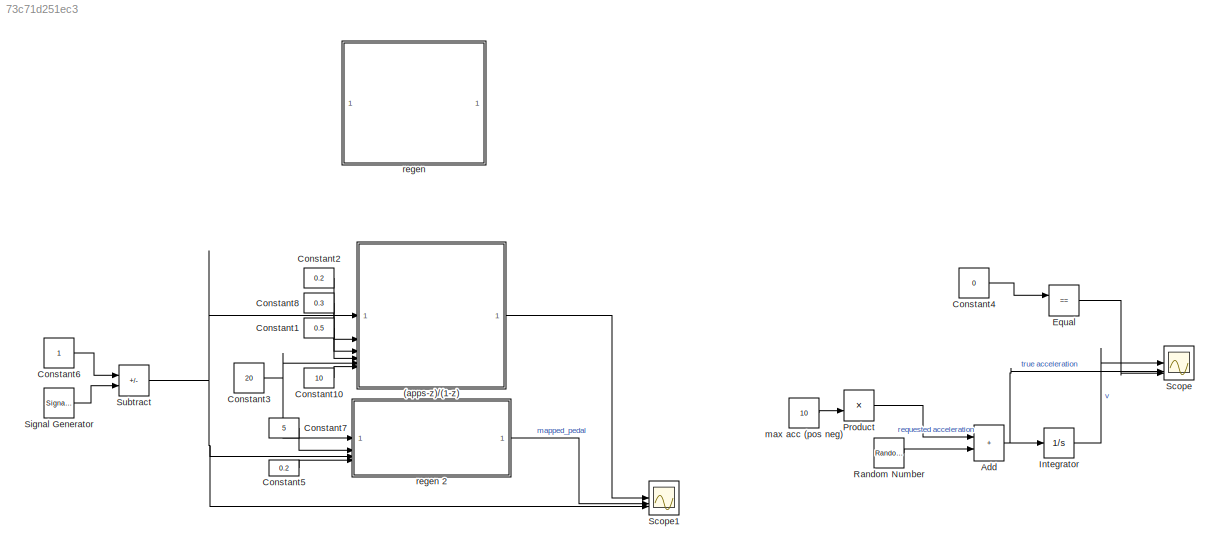
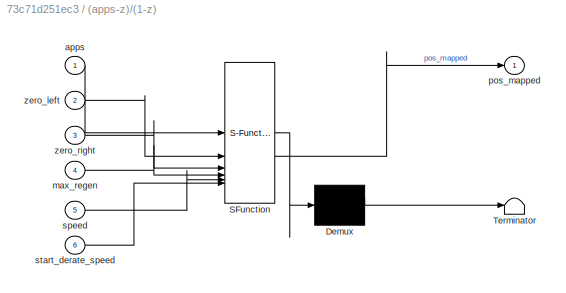
MODEL slx_73c71d251ec3
KIND model
CONFIG AbsTol = auto
CONFIG EnableMultiTasking = off
CONFIG FixedStep = auto
CONFIG MaxStep = auto
CONFIG MinStep = auto
CONFIG RelTol = 1e-3
CONFIG SampleTimeConstraint = Unconstrained
CONFIG SolverName = VariableStepAuto
CONFIG StartTime = 0.0
CONFIG StopTime = 1
BLOCK [SubSystem] (apps-z)//(1-z)
  ErrorFcn = Stateflow.Translate.translate
  PermitHierarchicalResolution = ExplicitOnly
  SFBlockType = MATLAB Function
  TreatAsAtomicUnit = on
BLOCK [Demux] (apps-z)//(1-z)/ Demux 
  Outputs = 1
BLOCK [S-Function] (apps-z)//(1-z)/ SFunction 
  EnableBusSupport = off
  FunctionName = sf_sfun
  PortCounts = [6 2]
  SFcnIsStateOwnerBlock = off
  SFunctionDeploymentMode = off
  Tag = Stateflow S-Function 2
BLOCK [Terminator] (apps-z)//(1-z)/ Terminator 
BLOCK [Inport] (apps-z)//(1-z)/apps
BLOCK [Inport] (apps-z)//(1-z)/max_regen
  Port = 4
BLOCK [Outport] (apps-z)//(1-z)/pos_mapped
BLOCK [Inport] (apps-z)//(1-z)/speed
  Port = 5
BLOCK [Inport] (apps-z)//(1-z)/start_derate_speed
  Port = 6
BLOCK [Inport] (apps-z)//(1-z)/zero_left
  Port = 2
BLOCK [Inport] (apps-z)//(1-z)/zero_right
  Port = 3
BLOCK [Sum] Add
  IconShape = rectangular
BLOCK [Constant] Constant1
  Value = 0.5
BLOCK [Constant] Constant10
  Value = 10
BLOCK [Constant] Constant2
  Value = 0.2
BLOCK [Constant] Constant3
  Value = 20
BLOCK [Constant] Constant4
  Value = 0
BLOCK [Constant] Constant5
  Value = 0.2
BLOCK [Constant] Constant6
BLOCK [Constant] Constant7
  Value = 5
BLOCK [Constant] Constant8
  Value = 0.3
BLOCK [RelationalOperator] Equal
  InputSameDT = off
  Operator = ==
  OutDataTypeStr = boolean
  RndMeth = Simplest
BLOCK [Integrator] Integrator
  InitialCondition = 20
BLOCK [Product] Product
BLOCK [RandomNumber] Random Number
  SampleTime = 0.01
  Variance = 2
BLOCK [Scope] Scope
  ActiveDisplayYMaximum = 20.456271960293634
  ActiveDisplayYMinimum = 19.682739386041991
  Floating = off
  GraphicalSettings = {"AxesScalingProperties":{"AlignXAxis":"Center","AlignYAxis":"Center","AutoScaleXAxisLimits":false,"AxesScaling":"Manual","AxesScalingNumUpdates":10,"ExpandOnly":true,"ScaleAxesLimitsAtStop":false,"XAxisDataRange":100,"YAxisDataRange":80},"DisplayProperties":{"ColorOrder":["auto","auto","auto","auto","auto","auto","auto","auto","auto","auto","auto","auto","auto","auto","auto","auto","auto","auto",...<+3207ch>
  LayoutDimensionsString = [2 2]
  MultipleDisplayCache = [{"MaxYLimMag":20.456271960293634,"MaxYLimReal":20.456271960293634,"MinYLimMag":19.682739386041991,"MinYLimReal":19.682739386041991,"PlotAsMagnitudePhase":false,"ShowGrid":true,"ShowLegend":true,"Title":"%<SignalLabel>","YLabel":""},{"MaxYLimMag":1,"MaxYLimReal":1,"MinYLimMag":0,"MinYLimReal":-1,"PlotAsMagnitudePhase":false,"ShowGrid":true,"ShowLegend":true,"Title":"%<SignalLabel>","YLabel":""},{"...<+384ch>
  NumInputPorts = 4
  ScopeFrameLocation = window
  ShowLegend = on
  WasSavedAsWebScope = on
  WindowPosition = [747.000000,169.000000,560.000000,420.000000,]
BLOCK [Scope] Scope1
  ActiveDisplayYMaximum = 3.28773480617738
  ActiveDisplayYMinimum = -3.497979479536852
  DataLoggingVariableName = ScopeData2
  Floating = off
  GraphicalSettings = {"AxesScalingProperties":{"AlignXAxis":"Center","AlignYAxis":"Center","AutoScaleXAxisLimits":false,"AxesScaling":"Manual","AxesScalingNumUpdates":10,"ExpandOnly":true,"ScaleAxesLimitsAtStop":false,"XAxisDataRange":100,"YAxisDataRange":80},"DisplayProperties":{"ColorOrder":["auto","auto","auto","auto","auto","auto","auto","auto","auto","auto","auto","auto","auto","auto","auto","auto","auto","auto",...<+2262ch>
  MultipleDisplayCache = [{"MaxYLimMag":3.6785714285714231,"MaxYLimReal":3.28773480617738,"MinYLimMag":0,"MinYLimReal":-3.497979479536852,"PlotAsMagnitudePhase":false,"ShowGrid":true,"ShowLegend":false,"Title":"%<SignalLabel>","YLabel":""}]
  NumInputPorts = 3
  ScopeFrameLocation = window
  WasSavedAsWebScope = on
  WindowPosition = [1.000000,1.000000,1646.000000,1006.000000,]
BLOCK [SignalGenerator] Signal Generator
  Frequency = 0.99
  WaveForm = sawtooth
BLOCK [Sum] Subtract
  IconShape = rectangular
  Inputs = +-
BLOCK [Constant] max acc (pos neg)
  Value = 10
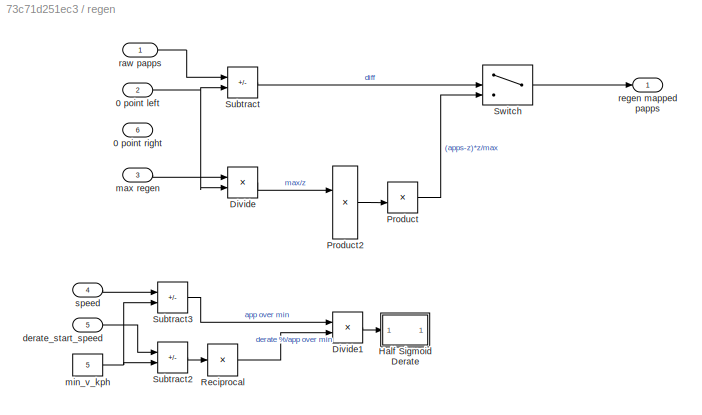
BLOCK [SubSystem] regen
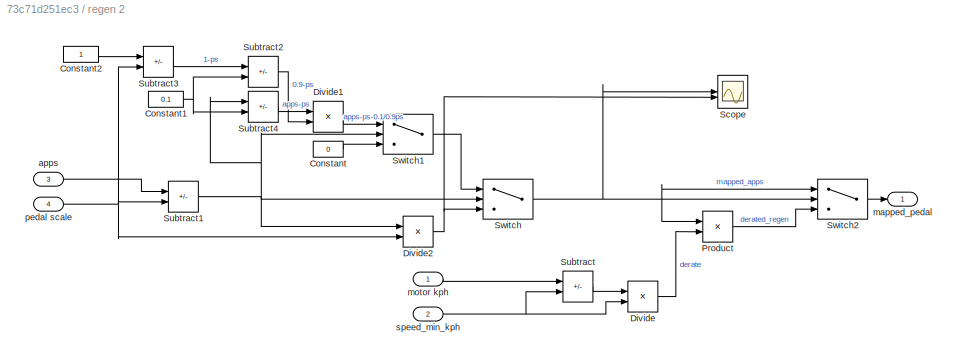
BLOCK [SubSystem] regen 2
BLOCK [Constant] regen 2/Constant
  Value = 0
BLOCK [Constant] regen 2/Constant1
  Value = 0.1
BLOCK [Constant] regen 2/Constant2
BLOCK [Product] regen 2/Divide
  Inputs = */
BLOCK [Product] regen 2/Divide1
  Inputs = */
BLOCK [Product] regen 2/Divide2
  Inputs = */
BLOCK [Product] regen 2/Product
BLOCK [Scope] regen 2/Scope
  ActiveDisplayYMaximum = -0.9
  ActiveDisplayYMinimum = -1.1
  DataLoggingVariableName = ScopeData1
  Floating = off
  GraphicalSettings = {"GraphicalSettings":{"LegacySettings":true,"Style":{"Style":{"AxesColor":"[0 0 0]","ChannelNames":["",""],"ColorOrder":"[1 0.909803921568627 0.392156862745098;0.149019607843137 0.549019607843137 0.866666666666667;0.96078431372549 0.466666666666667 0.16078431372549;0.286274509803922 0.858823529411765 0.250980392156863;0.752941176470588 0.36078431372549 0.984313725490196;0.423529411764706 0.9568627...<+531ch>
  LayoutDimensionsString = [1 2]
  MultipleDisplayCache = [{"MaxYLimMag":1.1,"MaxYLimReal":-0.9,"MinYLimMag":0,"MinYLimReal":-1.1,"PlotAsMagnitudePhase":false,"ShowGrid":true,"ShowLegend":false,"Title":"%<SignalLabel>","YLabel":""},{"MaxYLimMag":1.1,"MaxYLimReal":-0.9,"MinYLimMag":0,"MinYLimReal":-1.1,"PlotAsMagnitudePhase":false,"ShowGrid":true,"ShowLegend":false,"Title":"%<SignalLabel>","YLabel":""}]
  NumInputPorts = 2
  ScopeFrameLocation = window
  WasSavedAsWebScope = on
  WindowPosition = [319.000000,179.000000,1147.000000,563.000000,]
BLOCK [Sum] regen 2/Subtract
  IconShape = rectangular
  Inputs = +-
BLOCK [Sum] regen 2/Subtract1
  IconShape = rectangular
  Inputs = +-
BLOCK [Sum] regen 2/Subtract2
  IconShape = rectangular
  Inputs = +-
BLOCK [Sum] regen 2/Subtract3
  IconShape = rectangular
  Inputs = +-
BLOCK [Sum] regen 2/Subtract4
  IconShape = rectangular
  Inputs = +-
BLOCK [Switch] regen 2/Switch
  Criteria = u2 > Threshold
  InputSameDT = off
  SaturateOnIntegerOverflow = off
BLOCK [Switch] regen 2/Switch1
  Criteria = u2 > Threshold
  InputSameDT = off
  SaturateOnIntegerOverflow = off
  Threshold = 0.1
BLOCK [Switch] regen 2/Switch2
  Criteria = u2 > Threshold
  InputSameDT = off
  SaturateOnIntegerOverflow = off
BLOCK [Inport] regen 2/apps
  Port = 3
BLOCK [Outport] regen 2/mapped_pedal
BLOCK [Inport] regen 2/motor kph
BLOCK [Inport] regen 2/pedal scale
  Port = 4
BLOCK [Inport] regen 2/speed_min_kph
  Port = 2
BLOCK [Inport] regen/0 point left
  Port = 2
  Unit = %
BLOCK [Inport] regen/0 point right
  Port = 6
  Unit = %
BLOCK [Product] regen/Divide
  Inputs = */
BLOCK [Product] regen/Divide1
  Inputs = **
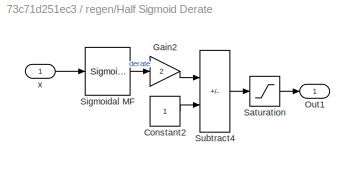
BLOCK [SubSystem] regen/Half Sigmoid Derate
BLOCK [Constant] regen/Half Sigmoid Derate/Constant2
BLOCK [Gain] regen/Half Sigmoid Derate/Gain2
  Gain = 2
BLOCK [Outport] regen/Half Sigmoid Derate/Out1
BLOCK [Saturate] regen/Half Sigmoid Derate/Saturation
  LowerLimit = 0
  UpperLimit = 1
BLOCK [Reference] regen/Half Sigmoid Derate/Sigmoidal MF  REF=fuzblock/Membership   (lib defined in mdl_858b3b3e7478)
Functions/Sigmoidal MF
  SourceBlock = fuzblock/Membership \nFunctions/Sigmoidal MF
  SourceType = Sigmoidal membership function
BLOCK [Sum] regen/Half Sigmoid Derate/Subtract4
  IconShape = rectangular
  Inputs = +-
BLOCK [Inport] regen/Half Sigmoid Derate/x
BLOCK [Product] regen/Product
BLOCK [Product] regen/Product2
BLOCK [Product] regen/Reciprocal
  Inputs = /
BLOCK [Sum] regen/Subtract
  IconShape = rectangular
  Inputs = +-
BLOCK [Sum] regen/Subtract2
  IconShape = rectangular
  Inputs = +-
BLOCK [Sum] regen/Subtract3
  IconShape = rectangular
  Inputs = +-
BLOCK [Switch] regen/Switch
  Criteria = u2 > Threshold
  InputSameDT = off
  SaturateOnIntegerOverflow = off
BLOCK [Inport] regen/derate_start_speed
  Port = 5
BLOCK [Inport] regen/max regen
  Port = 3
  Unit = %
BLOCK [Constant] regen/min_v_kph
  Value = 5
BLOCK [Inport] regen/raw papps
  Unit = %
BLOCK [Outport] regen/regen mapped papps
BLOCK [Inport] regen/speed
  Port = 4
LINE (apps-z)//(1-z):1 -> Scope1:1
NET Add:1 -> Integrator:1, Scope:3
LINE Constant10:1 -> (apps-z)//(1-z):6
LINE Constant1:1 -> (apps-z)//(1-z):4
LINE Constant2:1 -> (apps-z)//(1-z):2
NET Constant3:1 -> (apps-z)//(1-z):5, regen 2:1
LINE Constant4:1 -> Equal:1
LINE Constant5:1 -> regen 2:4
LINE Constant6:1 -> Subtract:1
LINE Constant7:1 -> regen 2:2
LINE Constant8:1 -> (apps-z)//(1-z):3
LINE Equal:1 -> Scope:4
LINE Integrator:1 -> Scope:1
LINE Product:1 -> Add:1
LINE Random Number:1 -> Add:2
LINE Signal Generator:1 -> Subtract:2
NET Subtract:1 -> (apps-z)//(1-z):1, Scope1:3, regen 2:3
LINE max acc (pos neg):1 -> Product:2
NET regen 2/Constant1:1 -> regen 2/Subtract2:2, regen 2/Subtract4:2
LINE regen 2/Constant2:1 -> regen 2/Subtract3:1
LINE regen 2/Constant:1 -> regen 2/Switch1:3
LINE regen 2/Divide1:1 -> regen 2/Switch1:1
NET regen 2/Divide2:1 -> regen 2/Scope:2, regen 2/Switch:3
LINE regen 2/Divide:1 -> regen 2/Product:2
LINE regen 2/Product:1 -> regen 2/Switch2:3
NET regen 2/Subtract1:1 -> regen 2/Divide2:1, regen 2/Subtract4:1, regen 2/Switch1:2, regen 2/Switch:2
LINE regen 2/Subtract2:1 -> regen 2/Divide1:2
LINE regen 2/Subtract3:1 -> regen 2/Subtract2:1
LINE regen 2/Subtract4:1 -> regen 2/Divide1:1
LINE regen 2/Subtract:1 -> regen 2/Divide:1
LINE regen 2/Switch1:1 -> regen 2/Switch:1
LINE regen 2/Switch2:1 -> regen 2/mapped_pedal:1
NET regen 2/Switch:1 -> regen 2/Product:1, regen 2/Scope:1, regen 2/Switch2:1, regen 2/Switch2:2
LINE regen 2/apps:1 -> regen 2/Subtract1:1
LINE regen 2/motor kph:1 -> regen 2/Subtract:1
NET regen 2/pedal scale:1 -> regen 2/Divide2:2, regen 2/Subtract1:2, regen 2/Subtract3:2
NET regen 2/speed_min_kph:1 -> regen 2/Divide:2, regen 2/Subtract:2
LINE regen 2:1 -> Scope1:2
NET regen/0 point left:1 -> regen/Divide:2, regen/Subtract:2
LINE regen/Divide1:1 -> regen/Half Sigmoid Derate:1
LINE regen/Divide:1 -> regen/Product2:1
LINE regen/Half Sigmoid Derate/Constant2:1 -> regen/Half Sigmoid Derate/Subtract4:2
LINE regen/Half Sigmoid Derate/Gain2:1 -> regen/Half Sigmoid Derate/Subtract4:1
LINE regen/Half Sigmoid Derate/Saturation:1 -> regen/Half Sigmoid Derate/Out1:1
LINE regen/Half Sigmoid Derate/Sigmoidal MF:1 -> regen/Half Sigmoid Derate/Gain2:1
LINE regen/Half Sigmoid Derate/Subtract4:1 -> regen/Half Sigmoid Derate/Saturation:1
LINE regen/Half Sigmoid Derate/x:1 -> regen/Half Sigmoid Derate/Sigmoidal MF:1
LINE regen/Product2:1 -> regen/Product:2
LINE regen/Product:1 -> regen/Switch:3
LINE regen/Reciprocal:1 -> regen/Divide1:2
LINE regen/Subtract2:1 -> regen/Reciprocal:1
LINE regen/Subtract3:1 -> regen/Divide1:1
LINE regen/Subtract:1 -> regen/Switch:2
LINE regen/Switch:1 -> regen/regen mapped papps:1
LINE regen/derate_start_speed:1 -> regen/Subtract2:1
LINE regen/max regen:1 -> regen/Divide:1
NET regen/min_v_kph:1 -> regen/Subtract2:2, regen/Subtract3:2
LINE regen/raw papps:1 -> regen/Subtract:1
LINE regen/speed:1 -> regen/Subtract3:1
note: NET lines group one-source signal fan-out (src -> all destinations, sorted); 1:1 wires keep LINE
CHART (apps-z)//(1-z) states=1 transitions=1
  STATE_LABEL 'eML_blk_kernel()'
  STATE_LABEL 'SCRIPT:\nfunction pos_mapped = pos_map(apps, zero_left, zero_right, max_regen, speed, start_derate_speed)\n    if apps < zero_left\n        % regen condition\n        unclipped_derate_term = (speed - 5)/(start_derate_speed - 5);\n        derate_term = max(0, min(1, unclipped_derate_term));\n        pos_mapped = (apps - zero_left) / zero_left * max_regen * derate_term;\n    elseif zero_left <= apps && app...<+136ch>'
CHART  states=0 transitions=0
